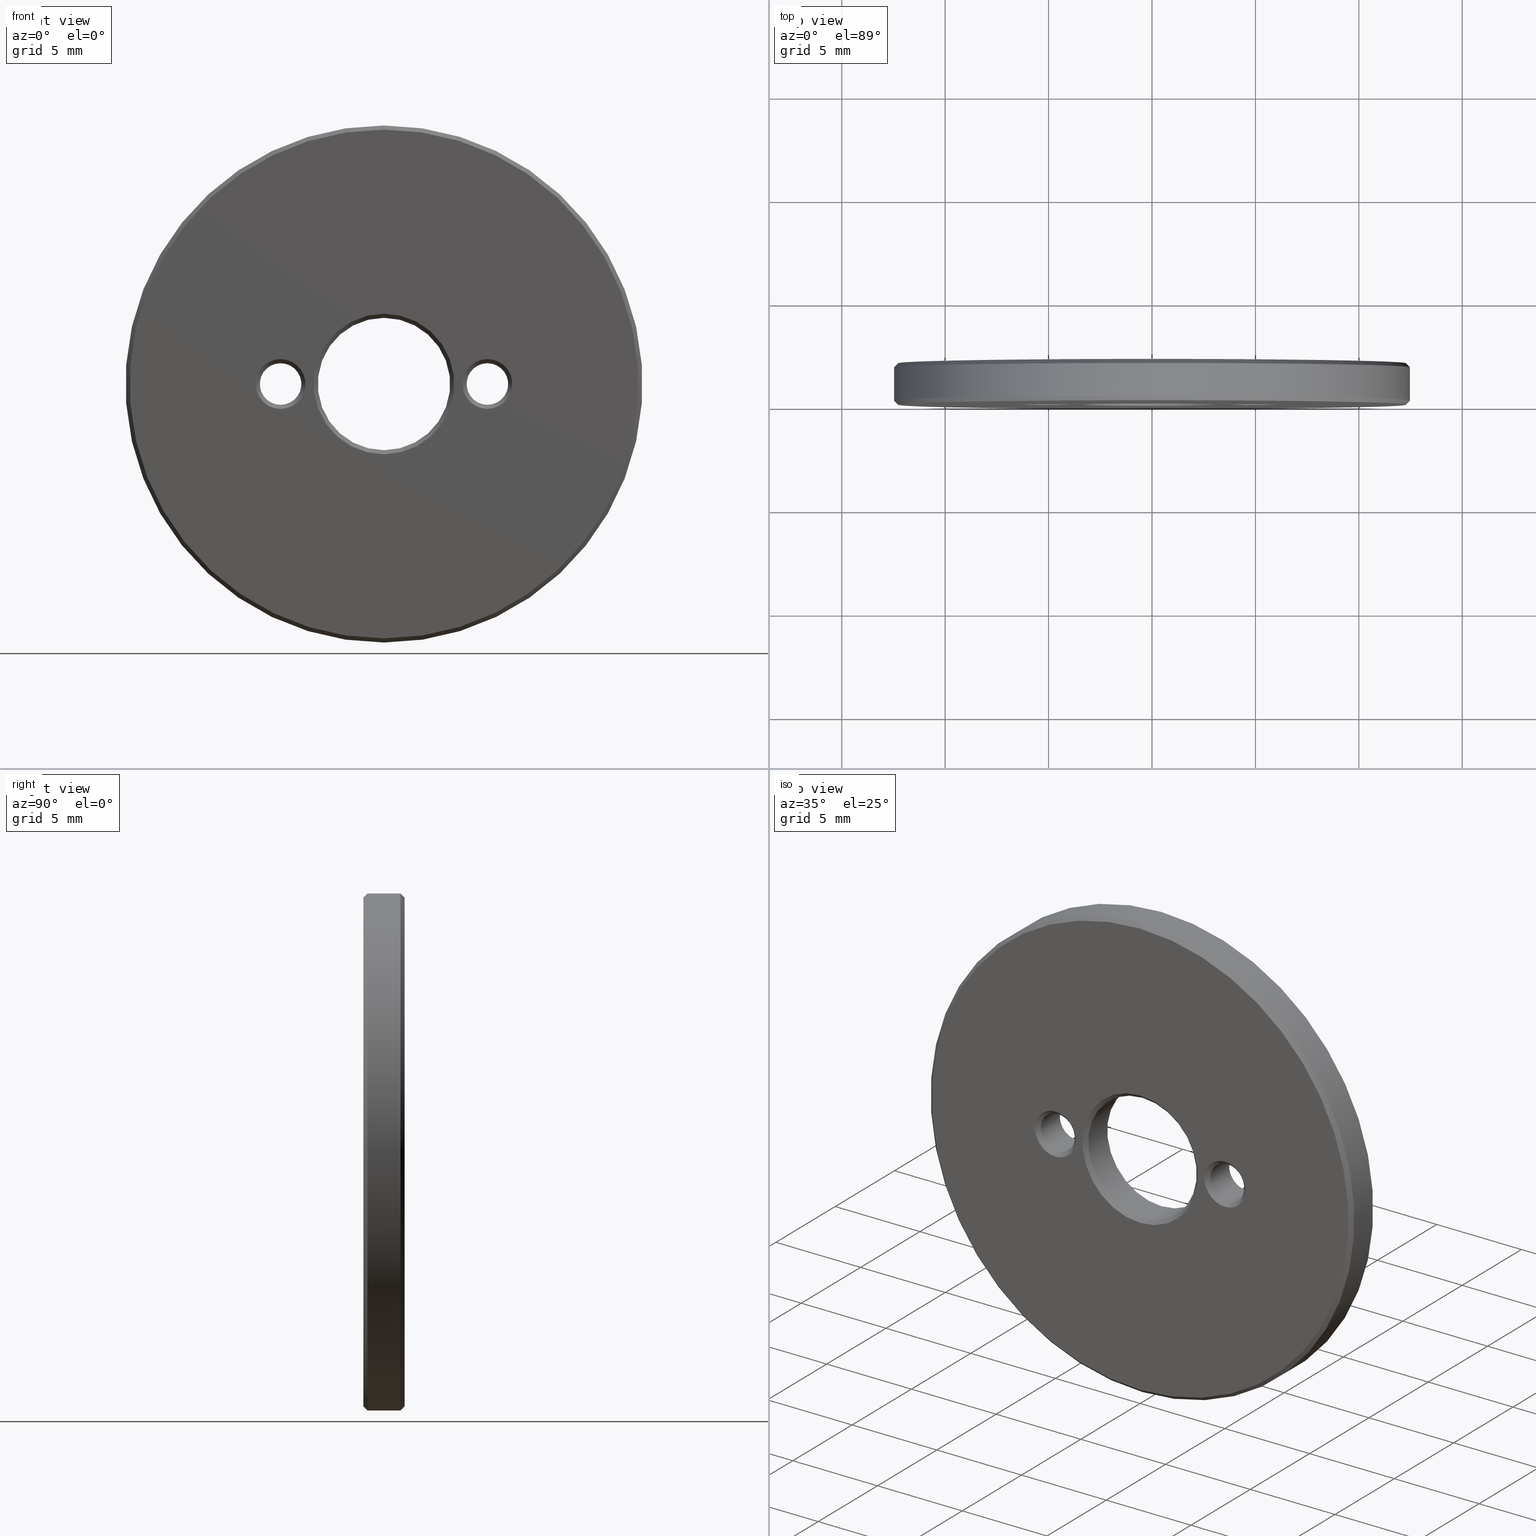
[diagram: canonical four-view strip — front | top / right | iso, engineering-drawing reading convention]
A machine part, canonical four-view strip (front | top / right | iso — engineering-drawing reading convention). The complete STEP part file that produces these views, byte-faithful:
ISO-10303-21;
HEADER;
FILE_DESCRIPTION (( 'STEP AP203' ),
    '1' );
FILE_NAME ('523801.STEP',
    '2022-12-15T01:51:06',
    ( '' ),
    ( '' ),
    'SwSTEP 2.0',
    'SolidWorks 2020',
    '' );
FILE_SCHEMA (( 'CONFIG_CONTROL_DESIGN' ));
ENDSEC;

DATA;
#1 = FACE_BOUND ( 'NONE', #266, .T. ) ;
#2 = VERTEX_POINT ( 'NONE', #27 ) ;
#3 = CLOSED_SHELL ( 'NONE', ( #261, #139, #124, #363, #100, #336, #265, #396, #347, #65, #189, #120, #330, #90 ) ) ;
#4 = DIRECTION ( 'NONE',  ( 0.000000000000000000, 1.000000000000000000, 0.000000000000000000 ) ) ;
#5 = DIRECTION ( 'NONE',  ( 0.000000000000000000, 1.000000000000000000, 0.000000000000000000 ) ) ;
#6 = EDGE_LOOP ( 'NONE', ( #276 ) ) ;
#7 = CARTESIAN_POINT ( 'NONE',  ( 5.000000000000000000, 1.800000000000000266, -1.836970198721029194E-15 ) ) ;
#8 = DATE_AND_TIME ( #155, #73 ) ;
#9 = EDGE_LOOP ( 'NONE', ( #87 ) ) ;
#10 = PERSON_AND_ORGANIZATION_ROLE ( 'design_owner' ) ;
#11 = COORDINATED_UNIVERSAL_TIME_OFFSET ( 8, 0, .AHEAD. ) ;
#12 = AXIS2_PLACEMENT_3D ( 'NONE', #305, #5, #277 ) ;
#13 = CYLINDRICAL_SURFACE ( 'NONE', #397, 3.200000000000000178 ) ;
#14 = CARTESIAN_POINT ( 'NONE',  ( 0.000000000000000000, 0.000000000000000000, 0.000000000000000000 ) ) ;
#15 = EDGE_CURVE ( 'NONE', #232, #232, #119, .T. ) ;
#16 = DIRECTION ( 'NONE',  ( -0.000000000000000000, -1.000000000000000000, -0.000000000000000000 ) ) ;
#17 = FACE_OUTER_BOUND ( 'NONE', #175, .T. ) ;
#18 = FACE_BOUND ( 'NONE', #337, .T. ) ;
#19 = DIRECTION ( 'NONE',  ( 0.000000000000000000, 0.000000000000000000, -1.000000000000000000 ) ) ;
#20 = FACE_OUTER_BOUND ( 'NONE', #176, .T. ) ;
#21 = ORIENTED_EDGE ( 'NONE', *, *, #59, .F. ) ;
#22 = CARTESIAN_POINT ( 'NONE',  ( 0.000000000000000000, 1.799999999999996936, 3.200000000000000178 ) ) ;
#23 = COORDINATED_UNIVERSAL_TIME_OFFSET ( 8, 0, .AHEAD. ) ;
#24 = EDGE_CURVE ( 'NONE', #2, #2, #38, .T. ) ;
#25 = ORIENTED_EDGE ( 'NONE', *, *, #191, .T. ) ;
#26 = EDGE_LOOP ( 'NONE', ( #390 ) ) ;
#27 = CARTESIAN_POINT ( 'NONE',  ( 0.000000000000000000, 0.000000000000000000, 12.29999999999999893 ) ) ;
#28 = DIRECTION ( 'NONE',  ( 0.000000000000000000, 0.000000000000000000, 1.000000000000000000 ) ) ;
#29 = DIRECTION ( 'NONE',  ( 0.000000000000000000, 0.000000000000000000, -1.000000000000000000 ) ) ;
#30 = CC_DESIGN_PERSON_AND_ORGANIZATION_ASSIGNMENT ( #375, #251, ( #237 ) ) ;
#31 = CARTESIAN_POINT ( 'NONE',  ( 0.000000000000000000, 2.000000000000000000, 0.000000000000000000 ) ) ;
#32 = AXIS2_PLACEMENT_3D ( 'NONE', #345, #255, #41 ) ;
#33 = AXIS2_PLACEMENT_3D ( 'NONE', #50, #263, #293 ) ;
#34 = EDGE_LOOP ( 'NONE', ( #25 ) ) ;
#35 = COORDINATED_UNIVERSAL_TIME_OFFSET ( 8, 0, .AHEAD. ) ;
#36 = CONICAL_SURFACE ( 'NONE', #257, 3.400000000000003908, 0.7853981633974396193 ) ;
#37 = ORIENTED_EDGE ( 'NONE', *, *, #24, .T. ) ;
#38 = CIRCLE ( 'NONE', #382, 12.29999999999999893 ) ;
#39 = EDGE_CURVE ( 'NONE', #297, #297, #166, .T. ) ;
#40 = SECURITY_CLASSIFICATION_LEVEL ( 'unclassified' ) ;
#41 = DIRECTION ( 'NONE',  ( 1.000000000000000000, 0.000000000000000000, 0.000000000000000000 ) ) ;
#42 = DIRECTION ( 'NONE',  ( 0.000000000000000000, 0.000000000000000000, -1.000000000000000000 ) ) ;
#43 = CC_DESIGN_APPROVAL ( #182, ( #320 ) ) ;
#44 = CARTESIAN_POINT ( 'NONE',  ( 5.000000000000000000, 1.800000000000000266, -1.836970198721029194E-15 ) ) ;
#45 = AXIS2_PLACEMENT_3D ( 'NONE', #301, #331, #29 ) ;
#46 = CYLINDRICAL_SURFACE ( 'NONE', #185, 1.004999999999999893 ) ;
#47 = EDGE_LOOP ( 'NONE', ( #225 ) ) ;
#48 = AXIS2_PLACEMENT_3D ( 'NONE', #169, #206, #145 ) ;
#49 = DIRECTION ( 'NONE',  ( 0.000000000000000000, 1.000000000000000000, 0.000000000000000000 ) ) ;
#50 = CARTESIAN_POINT ( 'NONE',  ( 0.000000000000000000, 1.799999999999996936, 0.000000000000000000 ) ) ;
#51 = DIRECTION ( 'NONE',  ( 0.000000000000000000, 0.000000000000000000, 1.000000000000000000 ) ) ;
#52 = EDGE_LOOP ( 'NONE', ( #352 ) ) ;
#53 = CARTESIAN_POINT ( 'NONE',  ( -5.000000000000000000, 0.1999999999999981515, 1.004999999999999893 ) ) ;
#54 = CC_DESIGN_PERSON_AND_ORGANIZATION_ASSIGNMENT ( #250, #10, ( #376 ) ) ;
#55 = ADVANCED_BREP_SHAPE_REPRESENTATION ( '523801', ( #135, #32 ), #200 ) ;
#56 = ORIENTED_EDGE ( 'NONE', *, *, #312, .F. ) ;
#57 = CIRCLE ( 'NONE', #364, 1.204999999999997851 ) ;
#58 = PERSON_AND_ORGANIZATION_ROLE ( 'creator' ) ;
#59 = EDGE_CURVE ( 'NONE', #211, #211, #259, .T. ) ;
#60 = CARTESIAN_POINT ( 'NONE',  ( -5.000000000000000000, 0.000000000000000000, 1.204999999999997851 ) ) ;
#61 = FACE_BOUND ( 'NONE', #207, .T. ) ;
#62 = EDGE_LOOP ( 'NONE', ( #37 ) ) ;
#63 = CARTESIAN_POINT ( 'NONE',  ( 5.000000000000000000, 2.000000000000000000, -1.836970198721029194E-15 ) ) ;
#64 = ORIENTED_EDGE ( 'NONE', *, *, #39, .T. ) ;
#65 = ADVANCED_FACE ( 'NONE', ( #350, #20 ), #280, .T. ) ;
#66 = CIRCLE ( 'NONE', #205, 1.004999999999999893 ) ;
#67 = DATE_TIME_ROLE ( 'creation_date' ) ;
#68 = EDGE_CURVE ( 'NONE', #148, #148, #57, .T. ) ;
#69 = FACE_OUTER_BOUND ( 'NONE', #162, .T. ) ;
#70 = CARTESIAN_POINT ( 'NONE',  ( 0.000000000000000000, 2.000000000000000000, 0.000000000000000000 ) ) ;
#71 = EDGE_LOOP ( 'NONE', ( #122 ) ) ;
#72 = CARTESIAN_POINT ( 'NONE',  ( -5.000000000000000000, 0.1999999999999981515, 0.000000000000000000 ) ) ;
#73 = LOCAL_TIME ( 9, 51, 6.000000000000000000, #23 ) ;
#74 = FACE_OUTER_BOUND ( 'NONE', #34, .T. ) ;
#75 = AXIS2_PLACEMENT_3D ( 'NONE', #7, #150, #28 ) ;
#76 = VERTEX_POINT ( 'NONE', #366 ) ;
#77 = COORDINATED_UNIVERSAL_TIME_OFFSET ( 8, 0, .AHEAD. ) ;
#78 = DIRECTION ( 'NONE',  ( 0.000000000000000000, 0.000000000000000000, 1.000000000000000000 ) ) ;
#79 = EDGE_LOOP ( 'NONE', ( #146 ) ) ;
#80 = CIRCLE ( 'NONE', #239, 3.400000000000003908 ) ;
#81 = FACE_BOUND ( 'NONE', #9, .T. ) ;
#82 = AXIS2_PLACEMENT_3D ( 'NONE', #324, #172, #394 ) ;
#83 = CC_DESIGN_PERSON_AND_ORGANIZATION_ASSIGNMENT ( #340, #58, ( #110 ) ) ;
#84 = DIRECTION ( 'NONE',  ( 0.000000000000000000, 1.000000000000000000, 0.000000000000000000 ) ) ;
#85 = CARTESIAN_POINT ( 'NONE',  ( 5.000000000000000000, 0.000000000000000000, 1.204999999999996074 ) ) ;
#86 = APPLICATION_CONTEXT ( 'configuration controlled 3d designs of mechanical parts and assemblies' ) ;
#87 = ORIENTED_EDGE ( 'NONE', *, *, #244, .T. ) ;
#88 = PLANE ( 'NONE',  #193 ) ;
#89 = ORIENTED_EDGE ( 'NONE', *, *, #342, .F. ) ;
#90 = ADVANCED_FACE ( 'NONE', ( #355, #194 ), #372, .F. ) ;
#91 = CIRCLE ( 'NONE', #393, 1.204999999999997851 ) ;
#92 = APPROVAL_DATE_TIME ( #329, #195 ) ;
#93 = CIRCLE ( 'NONE', #219, 12.50000000000000000 ) ;
#94 = APPROVAL_STATUS ( 'not_yet_approved' ) ;
#95 = EDGE_CURVE ( 'NONE', #107, #107, #91, .T. ) ;
#96 = LOCAL_TIME ( 9, 51, 6.000000000000000000, #11 ) ;
#97 = DATE_AND_TIME ( #343, #128 ) ;
#98 = APPROVAL_DATE_TIME ( #159, #282 ) ;
#99 = CONICAL_SURFACE ( 'NONE', #45, 1.204999999999997851, 0.7853981633974477239 ) ;
#100 = ADVANCED_FACE ( 'NONE', ( #231, #74 ), #46, .F. ) ;
#101 = DIRECTION ( 'NONE',  ( 0.000000000000000000, 0.000000000000000000, 1.000000000000000000 ) ) ;
#102 = CARTESIAN_POINT ( 'NONE',  ( -5.000000000000000000, 2.000000000000000000, 0.000000000000000000 ) ) ;
#103 = FACE_OUTER_BOUND ( 'NONE', #47, .T. ) ;
#104 = DIRECTION ( 'NONE',  ( -0.000000000000000000, -1.000000000000000000, -0.000000000000000000 ) ) ;
#105 = FACE_OUTER_BOUND ( 'NONE', #360, .T. ) ;
#106 = CARTESIAN_POINT ( 'NONE',  ( 5.000000000000000000, 0.1999999999999981515, -1.836970198721029194E-15 ) ) ;
#107 = VERTEX_POINT ( 'NONE', #85 ) ;
#108 = CC_DESIGN_APPROVAL ( #195, ( #110 ) ) ;
#109 = PERSON_AND_ORGANIZATION ( #253, #252 ) ;
#110 = PRODUCT_DEFINITION_FORMATION_WITH_SPECIFIED_SOURCE ( '�κ�', '', #376, .NOT_KNOWN. ) ;
#111 = ORIENTED_EDGE ( 'NONE', *, *, #377, .T. ) ;
#112 = EDGE_LOOP ( 'NONE', ( #111 ) ) ;
#113 = AXIS2_PLACEMENT_3D ( 'NONE', #262, #385, #215 ) ;
#114 = CALENDAR_DATE ( 2022, 15, 12 ) ;
#115 = CARTESIAN_POINT ( 'NONE',  ( 0.000000000000000000, 0.2000000000000022593, 0.000000000000000000 ) ) ;
#116 = AXIS2_PLACEMENT_3D ( 'NONE', #313, #230, #346 ) ;
#117 = DIRECTION ( 'NONE',  ( 0.000000000000000000, -1.000000000000000000, 0.000000000000000000 ) ) ;
#118 = VERTEX_POINT ( 'NONE', #213 ) ;
#119 = CIRCLE ( 'NONE', #48, 1.004999999999999893 ) ;
#120 = ADVANCED_FACE ( 'NONE', ( #227, #18 ), #218, .F. ) ;
#121 = DIRECTION ( 'NONE',  ( 0.000000000000000000, -0.000000000000000000, 1.000000000000000000 ) ) ;
#122 = ORIENTED_EDGE ( 'NONE', *, *, #132, .F. ) ;
#123 = EDGE_LOOP ( 'NONE', ( #296 ) ) ;
#124 = ADVANCED_FACE ( 'NONE', ( #103, #196 ), #387, .T. ) ;
#125 = EDGE_LOOP ( 'NONE', ( #216 ) ) ;
#126 = CC_DESIGN_PERSON_AND_ORGANIZATION_ASSIGNMENT ( #306, #358, ( #320 ) ) ;
#127 = MECHANICAL_CONTEXT ( 'NONE', #267, 'mechanical' ) ;
#128 = LOCAL_TIME ( 9, 51, 6.000000000000000000, #221 ) ;
#129 = CALENDAR_DATE ( 2022, 15, 12 ) ;
#130 = CONICAL_SURFACE ( 'NONE', #12, 1.004999999999999893, 0.7853981633974433940 ) ;
#131 = CIRCLE ( 'NONE', #116, 3.200000000000000178 ) ;
#132 = EDGE_CURVE ( 'NONE', #118, #118, #147, .T. ) ;
#133 = DIRECTION ( 'NONE',  ( -0.000000000000000000, -1.000000000000000000, -0.000000000000000000 ) ) ;
#134 = ORIENTED_EDGE ( 'NONE', *, *, #15, .T. ) ;
#135 = MANIFOLD_SOLID_BREP ( '����1', #3 ) ;
#136 = DIRECTION ( 'NONE',  ( 0.000000000000000000, -1.000000000000000000, 0.000000000000000000 ) ) ;
#137 = DIRECTION ( 'NONE',  ( 0.000000000000000000, 0.000000000000000000, -1.000000000000000000 ) ) ;
#138 = DIRECTION ( 'NONE',  ( 0.000000000000000000, 0.000000000000000000, -1.000000000000000000 ) ) ;
#139 = ADVANCED_FACE ( 'NONE', ( #81, #154, #300, #369 ), #88, .F. ) ;
#140 = DIRECTION ( 'NONE',  ( 0.000000000000000000, 0.000000000000000000, 1.000000000000000000 ) ) ;
#141 = DIRECTION ( 'NONE',  ( -0.000000000000000000, -1.000000000000000000, -0.000000000000000000 ) ) ;
#142 = DIRECTION ( 'NONE',  ( 0.000000000000000000, 1.000000000000000000, 0.000000000000000000 ) ) ;
#143 = ORIENTED_EDGE ( 'NONE', *, *, #209, .F. ) ;
#144 = CARTESIAN_POINT ( 'NONE',  ( 0.000000000000000000, 0.2000000000000022593, 12.50000000000000000 ) ) ;
#145 = DIRECTION ( 'NONE',  ( 0.000000000000000000, 0.000000000000000000, 1.000000000000000000 ) ) ;
#146 = ORIENTED_EDGE ( 'NONE', *, *, #279, .F. ) ;
#147 = CIRCLE ( 'NONE', #113, 3.400000000000003908 ) ;
#148 = VERTEX_POINT ( 'NONE', #203 ) ;
#149 = CARTESIAN_POINT ( 'NONE',  ( -5.000000000000000000, 0.000000000000000000, 0.000000000000000000 ) ) ;
#150 = DIRECTION ( 'NONE',  ( 0.000000000000000000, 1.000000000000000000, 0.000000000000000000 ) ) ;
#151 = CC_DESIGN_SECURITY_CLASSIFICATION ( #320, ( #110 ) ) ;
#152 = DIRECTION ( 'NONE',  ( 0.000000000000000000, 0.000000000000000000, 1.000000000000000000 ) ) ;
#153 = EDGE_LOOP ( 'NONE', ( #395 ) ) ;
#154 = FACE_BOUND ( 'NONE', #247, .T. ) ;
#155 = CALENDAR_DATE ( 2022, 15, 12 ) ;
#156 = EDGE_LOOP ( 'NONE', ( #214 ) ) ;
#157 = PERSON_AND_ORGANIZATION_ROLE ( 'design_supplier' ) ;
#158 = DATE_AND_TIME ( #238, #285 ) ;
#159 = DATE_AND_TIME ( #129, #96 ) ;
#160 = FACE_OUTER_BOUND ( 'NONE', #112, .T. ) ;
#161 = AXIS2_PLACEMENT_3D ( 'NONE', #63, #184, #275 ) ;
#162 = EDGE_LOOP ( 'NONE', ( #143 ) ) ;
#163 = FACE_BOUND ( 'NONE', #307, .T. ) ;
#164 = DIRECTION ( 'NONE',  ( 0.000000000000000000, 0.000000000000000000, 1.000000000000000000 ) ) ;
#165 = DIRECTION ( 'NONE',  ( -0.000000000000000000, -1.000000000000000000, -0.000000000000000000 ) ) ;
#166 = CIRCLE ( 'NONE', #224, 1.004999999999999893 ) ;
#167 = DESIGN_CONTEXT ( 'detailed design', #86, 'design' ) ;
#168 = EDGE_CURVE ( 'NONE', #76, #76, #339, .T. ) ;
#169 = CARTESIAN_POINT ( 'NONE',  ( -5.000000000000000000, 1.800000000000000266, 0.000000000000000000 ) ) ;
#170 = FACE_BOUND ( 'NONE', #269, .T. ) ;
#171 = FACE_OUTER_BOUND ( 'NONE', #123, .T. ) ;
#172 = DIRECTION ( 'NONE',  ( 0.000000000000000000, 1.000000000000000000, 0.000000000000000000 ) ) ;
#173 = EDGE_LOOP ( 'NONE', ( #381 ) ) ;
#174 = VERTEX_POINT ( 'NONE', #22 ) ;
#175 = EDGE_LOOP ( 'NONE', ( #134 ) ) ;
#176 = EDGE_LOOP ( 'NONE', ( #56 ) ) ;
#177 = VERTEX_POINT ( 'NONE', #144 ) ;
#178 = CC_DESIGN_DATE_AND_TIME_ASSIGNMENT ( #158, #210, ( #320 ) ) ;
#179 = FACE_OUTER_BOUND ( 'NONE', #26, .T. ) ;
#180 = CARTESIAN_POINT ( 'NONE',  ( 0.000000000000000000, 2.000000000000000000, 3.400000000000003908 ) ) ;
#181 = PLANE ( 'NONE',  #188 ) ;
#182 = APPROVAL ( #204, 'δָ��' ) ;
#183 = EDGE_LOOP ( 'NONE', ( #270 ) ) ;
#184 = DIRECTION ( 'NONE',  ( -0.000000000000000000, -1.000000000000000000, -0.000000000000000000 ) ) ;
#185 = AXIS2_PLACEMENT_3D ( 'NONE', #289, #234, #383 ) ;
#186 = ORIENTED_EDGE ( 'NONE', *, *, #377, .F. ) ;
#187 = AXIS2_PLACEMENT_3D ( 'NONE', #226, #49, #349 ) ;
#188 = AXIS2_PLACEMENT_3D ( 'NONE', #31, #4, #121 ) ;
#189 = ADVANCED_FACE ( 'NONE', ( #333, #61 ), #130, .F. ) ;
#190 = PERSON_AND_ORGANIZATION ( #253, #252 ) ;
#191 = EDGE_CURVE ( 'NONE', #264, #264, #254, .T. ) ;
#192 = CARTESIAN_POINT ( 'NONE',  ( 0.000000000000000000, 0.000000000000000000, 0.000000000000000000 ) ) ;
#193 = AXIS2_PLACEMENT_3D ( 'NONE', #335, #274, #245 ) ;
#194 = FACE_BOUND ( 'NONE', #370, .T. ) ;
#195 = APPROVAL ( #309, 'δָ��' ) ;
#196 = FACE_OUTER_BOUND ( 'NONE', #246, .T. ) ;
#197 = CARTESIAN_POINT ( 'NONE',  ( 0.000000000000000000, 2.000000000000000000, 0.000000000000000000 ) ) ;
#198 = DIRECTION ( 'NONE',  ( 0.000000000000000000, 0.000000000000000000, 1.000000000000000000 ) ) ;
#199 = CARTESIAN_POINT ( 'NONE',  ( 5.000000000000000000, 0.000000000000000000, -1.836970198721029194E-15 ) ) ;
#200 =( GEOMETRIC_REPRESENTATION_CONTEXT ( 3 ) GLOBAL_UNCERTAINTY_ASSIGNED_CONTEXT ( ( #344 ) ) GLOBAL_UNIT_ASSIGNED_CONTEXT ( ( #361, #326, #241 ) ) REPRESENTATION_CONTEXT ( 'NONE', 'WORKASPACE' ) );
#201 = AXIS2_PLACEMENT_3D ( 'NONE', #327, #117, #152 ) ;
#202 = DIRECTION ( 'NONE',  ( 0.000000000000000000, 0.000000000000000000, 1.000000000000000000 ) ) ;
#203 = CARTESIAN_POINT ( 'NONE',  ( -5.000000000000000000, 2.000000000000000000, 1.204999999999997851 ) ) ;
#204 = APPROVAL_STATUS ( 'not_yet_approved' ) ;
#205 = AXIS2_PLACEMENT_3D ( 'NONE', #72, #228, #290 ) ;
#206 = DIRECTION ( 'NONE',  ( 0.000000000000000000, 1.000000000000000000, 0.000000000000000000 ) ) ;
#207 = EDGE_LOOP ( 'NONE', ( #256 ) ) ;
#208 = CARTESIAN_POINT ( 'NONE',  ( 5.000000000000000000, 0.1999999999999981515, 1.004999999999998117 ) ) ;
#209 = EDGE_CURVE ( 'NONE', #332, #332, #380, .T. ) ;
#210 = DATE_TIME_ROLE ( 'classification_date' ) ;
#211 = VERTEX_POINT ( 'NONE', #243 ) ;
#212 = FACE_BOUND ( 'NONE', #79, .T. ) ;
#213 = CARTESIAN_POINT ( 'NONE',  ( 0.000000000000000000, 0.000000000000000000, 3.400000000000003908 ) ) ;
#214 = ORIENTED_EDGE ( 'NONE', *, *, #39, .F. ) ;
#215 = DIRECTION ( 'NONE',  ( 0.000000000000000000, 0.000000000000000000, 1.000000000000000000 ) ) ;
#216 = ORIENTED_EDGE ( 'NONE', *, *, #168, .F. ) ;
#217 = APPROVAL_PERSON_ORGANIZATION ( #109, #182, #323 ) ;
#218 = CONICAL_SURFACE ( 'NONE', #33, 3.200000000000000178, 0.7853981633974492782 ) ;
#219 = AXIS2_PLACEMENT_3D ( 'NONE', #292, #223, #51 ) ;
#220 = PERSON_AND_ORGANIZATION ( #253, #252 ) ;
#221 = COORDINATED_UNIVERSAL_TIME_OFFSET ( 8, 0, .AHEAD. ) ;
#222 = PERSON_AND_ORGANIZATION ( #253, #252 ) ;
#223 = DIRECTION ( 'NONE',  ( -0.000000000000000000, 1.000000000000000000, -0.000000000000000000 ) ) ;
#224 = AXIS2_PLACEMENT_3D ( 'NONE', #106, #104, #229 ) ;
#225 = ORIENTED_EDGE ( 'NONE', *, *, #312, .T. ) ;
#226 = CARTESIAN_POINT ( 'NONE',  ( 0.000000000000000000, 1.799999999999996936, 0.000000000000000000 ) ) ;
#227 = FACE_OUTER_BOUND ( 'NONE', #153, .T. ) ;
#228 = DIRECTION ( 'NONE',  ( -0.000000000000000000, -1.000000000000000000, -0.000000000000000000 ) ) ;
#229 = DIRECTION ( 'NONE',  ( 0.000000000000000000, 0.000000000000000000, 1.000000000000000000 ) ) ;
#230 = DIRECTION ( 'NONE',  ( -0.000000000000000000, -1.000000000000000000, -0.000000000000000000 ) ) ;
#231 = FACE_OUTER_BOUND ( 'NONE', #348, .T. ) ;
#232 = VERTEX_POINT ( 'NONE', #391 ) ;
#233 = AXIS2_PLACEMENT_3D ( 'NONE', #199, #321, #19 ) ;
#234 = DIRECTION ( 'NONE',  ( -0.000000000000000000, -1.000000000000000000, -0.000000000000000000 ) ) ;
#235 = ORIENTED_EDGE ( 'NONE', *, *, #68, .F. ) ;
#236 = VERTEX_POINT ( 'NONE', #60 ) ;
#237 = PRODUCT_DEFINITION ( 'δ֪', '', #110, #167 ) ;
#238 = CALENDAR_DATE ( 2022, 15, 12 ) ;
#239 = AXIS2_PLACEMENT_3D ( 'NONE', #302, #165, #101 ) ;
#240 = DIRECTION ( 'NONE',  ( -0.000000000000000000, -1.000000000000000000, -0.000000000000000000 ) ) ;
#241 =( NAMED_UNIT ( * ) SI_UNIT ( $, .STERADIAN. ) SOLID_ANGLE_UNIT ( ) );
#242 = FACE_OUTER_BOUND ( 'NONE', #248, .T. ) ;
#243 = CARTESIAN_POINT ( 'NONE',  ( 0.000000000000000000, 2.000000000000000000, 12.29999999999999893 ) ) ;
#244 = EDGE_CURVE ( 'NONE', #236, #236, #304, .T. ) ;
#245 = DIRECTION ( 'NONE',  ( 0.000000000000000000, -0.000000000000000000, 1.000000000000000000 ) ) ;
#246 = EDGE_LOOP ( 'NONE', ( #303 ) ) ;
#247 = EDGE_LOOP ( 'NONE', ( #371 ) ) ;
#248 = EDGE_LOOP ( 'NONE', ( #368 ) ) ;
#249 = CC_DESIGN_PERSON_AND_ORGANIZATION_ASSIGNMENT ( #220, #157, ( #110 ) ) ;
#250 = PERSON_AND_ORGANIZATION ( #253, #252 ) ;
#251 = PERSON_AND_ORGANIZATION_ROLE ( 'creator' ) ;
#252 = ORGANIZATION ( 'δָ��', 'δָ��', '' ) ;
#253 = PERSON ( 'δָ��', 'δָ��', 'δָ��', ('δָ��'), ('δָ��'), ('δָ��') ) ;
#254 = CIRCLE ( 'NONE', #75, 1.004999999999999893 ) ;
#255 = DIRECTION ( 'NONE',  ( 0.000000000000000000, 0.000000000000000000, 1.000000000000000000 ) ) ;
#256 = ORIENTED_EDGE ( 'NONE', *, *, #15, .F. ) ;
#257 = AXIS2_PLACEMENT_3D ( 'NONE', #192, #384, #42 ) ;
#258 = ORIENTED_EDGE ( 'NONE', *, *, #273, .T. ) ;
#259 = CIRCLE ( 'NONE', #82, 12.29999999999999893 ) ;
#260 = FACE_OUTER_BOUND ( 'NONE', #71, .T. ) ;
#261 = ADVANCED_FACE ( 'NONE', ( #272, #1, #242, #365 ), #181, .T. ) ;
#262 = CARTESIAN_POINT ( 'NONE',  ( 0.000000000000000000, 0.000000000000000000, 0.000000000000000000 ) ) ;
#263 = DIRECTION ( 'NONE',  ( 0.000000000000000000, 1.000000000000000000, 0.000000000000000000 ) ) ;
#264 = VERTEX_POINT ( 'NONE', #388 ) ;
#265 = ADVANCED_FACE ( 'NONE', ( #212, #179 ), #99, .F. ) ;
#266 = EDGE_LOOP ( 'NONE', ( #258 ) ) ;
#267 = APPLICATION_CONTEXT ( 'configuration controlled 3d designs of mechanical parts and assemblies' ) ;
#268 = AXIS2_PLACEMENT_3D ( 'NONE', #44, #142, #164 ) ;
#269 = EDGE_LOOP ( 'NONE', ( #21 ) ) ;
#270 = ORIENTED_EDGE ( 'NONE', *, *, #132, .T. ) ;
#271 = VERTEX_POINT ( 'NONE', #299 ) ;
#272 = FACE_BOUND ( 'NONE', #6, .T. ) ;
#273 = EDGE_CURVE ( 'NONE', #356, #356, #80, .T. ) ;
#274 = DIRECTION ( 'NONE',  ( 0.000000000000000000, 1.000000000000000000, 0.000000000000000000 ) ) ;
#275 = DIRECTION ( 'NONE',  ( 0.000000000000000000, 0.000000000000000000, 1.000000000000000000 ) ) ;
#276 = ORIENTED_EDGE ( 'NONE', *, *, #68, .T. ) ;
#277 = DIRECTION ( 'NONE',  ( 0.000000000000000000, 0.000000000000000000, 1.000000000000000000 ) ) ;
#278 = ORIENTED_EDGE ( 'NONE', *, *, #168, .T. ) ;
#279 = EDGE_CURVE ( 'NONE', #322, #322, #66, .T. ) ;
#280 = CONICAL_SURFACE ( 'NONE', #310, 12.50000000000000000, 0.7853981633974482790 ) ;
#281 = APPLICATION_PROTOCOL_DEFINITION ( 'international standard', 'config_control_design', 1994, #267 ) ;
#282 = APPROVAL ( #94, 'δָ��' ) ;
#283 = APPLICATION_PROTOCOL_DEFINITION ( 'international standard', 'config_control_design', 1994, #86 ) ;
#284 = CONICAL_SURFACE ( 'NONE', #233, 1.204999999999997851, 0.7853981633974477239 ) ;
#285 = LOCAL_TIME ( 9, 51, 6.000000000000000000, #35 ) ;
#286 = EDGE_LOOP ( 'NONE', ( #278 ) ) ;
#287 = CONICAL_SURFACE ( 'NONE', #362, 12.29999999999999893, 0.7853981633974612686 ) ;
#288 = PRODUCT_RELATED_PRODUCT_CATEGORY ( 'detail', '', ( #376 ) ) ;
#289 = CARTESIAN_POINT ( 'NONE',  ( 5.000000000000000000, 2.000000000000000000, -1.836970198721029194E-15 ) ) ;
#290 = DIRECTION ( 'NONE',  ( 0.000000000000000000, 0.000000000000000000, 1.000000000000000000 ) ) ;
#291 = CARTESIAN_POINT ( 'NONE',  ( 0.000000000000000000, 2.000000000000000000, 0.000000000000000000 ) ) ;
#292 = CARTESIAN_POINT ( 'NONE',  ( 0.000000000000000000, 0.2000000000000022593, 0.000000000000000000 ) ) ;
#293 = DIRECTION ( 'NONE',  ( 0.000000000000000000, 0.000000000000000000, 1.000000000000000000 ) ) ;
#294 = DIRECTION ( 'NONE',  ( 0.000000000000000000, 0.000000000000000000, -1.000000000000000000 ) ) ;
#295 = DIRECTION ( 'NONE',  ( -0.000000000000000000, 1.000000000000000000, -0.000000000000000000 ) ) ;
#296 = ORIENTED_EDGE ( 'NONE', *, *, #279, .T. ) ;
#297 = VERTEX_POINT ( 'NONE', #208 ) ;
#298 = EDGE_LOOP ( 'NONE', ( #235 ) ) ;
#299 = CARTESIAN_POINT ( 'NONE',  ( 0.000000000000000000, 0.2000000000000070333, 3.200000000000000178 ) ) ;
#300 = FACE_BOUND ( 'NONE', #183, .T. ) ;
#301 = CARTESIAN_POINT ( 'NONE',  ( -5.000000000000000000, 0.000000000000000000, 0.000000000000000000 ) ) ;
#302 = CARTESIAN_POINT ( 'NONE',  ( 0.000000000000000000, 2.000000000000000000, 0.000000000000000000 ) ) ;
#303 = ORIENTED_EDGE ( 'NONE', *, *, #209, .T. ) ;
#304 = CIRCLE ( 'NONE', #357, 1.204999999999997851 ) ;
#305 = CARTESIAN_POINT ( 'NONE',  ( -5.000000000000000000, 1.800000000000000266, 0.000000000000000000 ) ) ;
#306 = PERSON_AND_ORGANIZATION ( #253, #252 ) ;
#307 = EDGE_LOOP ( 'NONE', ( #89 ) ) ;
#308 = CIRCLE ( 'NONE', #187, 3.200000000000000178 ) ;
#309 = APPROVAL_STATUS ( 'not_yet_approved' ) ;
#310 = AXIS2_PLACEMENT_3D ( 'NONE', #115, #295, #140 ) ;
#311 = APPROVAL_DATE_TIME ( #8, #182 ) ;
#312 = EDGE_CURVE ( 'NONE', #177, #177, #93, .T. ) ;
#313 = CARTESIAN_POINT ( 'NONE',  ( 0.000000000000000000, 0.2000000000000070333, 0.000000000000000000 ) ) ;
#314 = DIRECTION ( 'NONE',  ( 0.000000000000000000, 0.000000000000000000, -1.000000000000000000 ) ) ;
#315 = AXIS2_PLACEMENT_3D ( 'NONE', #291, #16, #137 ) ;
#316 = PRODUCT_DEFINITION_SHAPE ( 'NONE', 'NONE',  #237 ) ;
#317 = CC_DESIGN_DATE_AND_TIME_ASSIGNMENT ( #97, #67, ( #237 ) ) ;
#318 = CARTESIAN_POINT ( 'NONE',  ( -5.000000000000000000, 2.000000000000000000, 0.000000000000000000 ) ) ;
#319 = FACE_BOUND ( 'NONE', #156, .T. ) ;
#320 = SECURITY_CLASSIFICATION ( '', '', #40 ) ;
#321 = DIRECTION ( 'NONE',  ( -0.000000000000000000, -1.000000000000000000, -0.000000000000000000 ) ) ;
#322 = VERTEX_POINT ( 'NONE', #53 ) ;
#323 = APPROVAL_ROLE ( '' ) ;
#324 = CARTESIAN_POINT ( 'NONE',  ( 0.000000000000000000, 2.000000000000000000, 0.000000000000000000 ) ) ;
#325 = ORIENTED_EDGE ( 'NONE', *, *, #191, .F. ) ;
#326 =( NAMED_UNIT ( * ) PLANE_ANGLE_UNIT ( ) SI_UNIT ( $, .RADIAN. ) );
#327 = CARTESIAN_POINT ( 'NONE',  ( 0.000000000000000000, 1.800000000000002931, 0.000000000000000000 ) ) ;
#328 = CARTESIAN_POINT ( 'NONE',  ( 0.000000000000000000, 1.800000000000002931, 12.50000000000000000 ) ) ;
#329 = DATE_AND_TIME ( #114, #338 ) ;
#330 = ADVANCED_FACE ( 'NONE', ( #69, #170 ), #287, .T. ) ;
#331 = DIRECTION ( 'NONE',  ( -0.000000000000000000, -1.000000000000000000, -0.000000000000000000 ) ) ;
#332 = VERTEX_POINT ( 'NONE', #328 ) ;
#333 = FACE_OUTER_BOUND ( 'NONE', #298, .T. ) ;
#334 = ORIENTED_EDGE ( 'NONE', *, *, #342, .T. ) ;
#335 = CARTESIAN_POINT ( 'NONE',  ( 0.000000000000000000, 0.000000000000000000, 0.000000000000000000 ) ) ;
#336 = ADVANCED_FACE ( 'NONE', ( #171, #17 ), #386, .F. ) ;
#337 = EDGE_LOOP ( 'NONE', ( #186 ) ) ;
#338 = LOCAL_TIME ( 9, 51, 6.000000000000000000, #77 ) ;
#339 = CIRCLE ( 'NONE', #161, 1.204999999999997851 ) ;
#340 = PERSON_AND_ORGANIZATION ( #253, #252 ) ;
#341 = AXIS2_PLACEMENT_3D ( 'NONE', #102, #141, #314 ) ;
#342 = EDGE_CURVE ( 'NONE', #271, #271, #131, .T. ) ;
#343 = CALENDAR_DATE ( 2022, 15, 12 ) ;
#344 = UNCERTAINTY_MEASURE_WITH_UNIT (LENGTH_MEASURE( 1.000000000000000082E-05 ), #361, 'distance_accuracy_value', 'NONE');
#345 = CARTESIAN_POINT ( 'NONE',  ( 0.000000000000000000, 0.000000000000000000, 0.000000000000000000 ) ) ;
#346 = DIRECTION ( 'NONE',  ( 0.000000000000000000, 0.000000000000000000, 1.000000000000000000 ) ) ;
#347 = ADVANCED_FACE ( 'NONE', ( #163, #260 ), #36, .F. ) ;
#348 = EDGE_LOOP ( 'NONE', ( #64 ) ) ;
#349 = DIRECTION ( 'NONE',  ( 0.000000000000000000, 0.000000000000000000, 1.000000000000000000 ) ) ;
#350 = FACE_BOUND ( 'NONE', #173, .T. ) ;
#351 = DIRECTION ( 'NONE',  ( -0.000000000000000000, -1.000000000000000000, -0.000000000000000000 ) ) ;
#352 = ORIENTED_EDGE ( 'NONE', *, *, #95, .F. ) ;
#353 = FACE_OUTER_BOUND ( 'NONE', #52, .T. ) ;
#354 = CC_DESIGN_APPROVAL ( #282, ( #237 ) ) ;
#355 = FACE_OUTER_BOUND ( 'NONE', #125, .T. ) ;
#356 = VERTEX_POINT ( 'NONE', #180 ) ;
#357 = AXIS2_PLACEMENT_3D ( 'NONE', #149, #84, #367 ) ;
#358 = PERSON_AND_ORGANIZATION_ROLE ( 'classification_officer' ) ;
#359 = CARTESIAN_POINT ( 'NONE',  ( 5.000000000000000000, 0.000000000000000000, -1.836970198721029194E-15 ) ) ;
#360 = EDGE_LOOP ( 'NONE', ( #334 ) ) ;
#361 =( LENGTH_UNIT ( ) NAMED_UNIT ( * ) SI_UNIT ( .MILLI., .METRE. ) );
#362 = AXIS2_PLACEMENT_3D ( 'NONE', #70, #136, #138 ) ;
#363 = ADVANCED_FACE ( 'NONE', ( #105, #160 ), #13, .F. ) ;
#364 = AXIS2_PLACEMENT_3D ( 'NONE', #318, #240, #198 ) ;
#365 = FACE_BOUND ( 'NONE', #286, .T. ) ;
#366 = CARTESIAN_POINT ( 'NONE',  ( 5.000000000000000000, 2.000000000000000000, 1.204999999999996074 ) ) ;
#367 = DIRECTION ( 'NONE',  ( 0.000000000000000000, 0.000000000000000000, 1.000000000000000000 ) ) ;
#368 = ORIENTED_EDGE ( 'NONE', *, *, #59, .T. ) ;
#369 = FACE_OUTER_BOUND ( 'NONE', #62, .T. ) ;
#370 = EDGE_LOOP ( 'NONE', ( #325 ) ) ;
#371 = ORIENTED_EDGE ( 'NONE', *, *, #95, .T. ) ;
#372 = CONICAL_SURFACE ( 'NONE', #268, 1.004999999999999893, 0.7853981633974433940 ) ;
#373 = APPROVAL_ROLE ( '' ) ;
#374 = SHAPE_DEFINITION_REPRESENTATION ( #316, #55 ) ;
#375 = PERSON_AND_ORGANIZATION ( #253, #252 ) ;
#376 = PRODUCT ( '523801', '523801', '', ( #127 ) ) ;
#377 = EDGE_CURVE ( 'NONE', #174, #174, #308, .T. ) ;
#378 = APPROVAL_ROLE ( '' ) ;
#379 = APPROVAL_PERSON_ORGANIZATION ( #190, #195, #373 ) ;
#380 = CIRCLE ( 'NONE', #201, 12.50000000000000000 ) ;
#381 = ORIENTED_EDGE ( 'NONE', *, *, #24, .F. ) ;
#382 = AXIS2_PLACEMENT_3D ( 'NONE', #14, #351, #78 ) ;
#383 = DIRECTION ( 'NONE',  ( 0.000000000000000000, 0.000000000000000000, -1.000000000000000000 ) ) ;
#384 = DIRECTION ( 'NONE',  ( -0.000000000000000000, -1.000000000000000000, -0.000000000000000000 ) ) ;
#385 = DIRECTION ( 'NONE',  ( 0.000000000000000000, 1.000000000000000000, 0.000000000000000000 ) ) ;
#386 = CYLINDRICAL_SURFACE ( 'NONE', #341, 1.004999999999999893 ) ;
#387 = CYLINDRICAL_SURFACE ( 'NONE', #315, 12.50000000000000000 ) ;
#388 = CARTESIAN_POINT ( 'NONE',  ( 5.000000000000000000, 1.800000000000000266, 1.004999999999998117 ) ) ;
#389 = DIRECTION ( 'NONE',  ( 0.000000000000000000, 1.000000000000000000, 0.000000000000000000 ) ) ;
#390 = ORIENTED_EDGE ( 'NONE', *, *, #244, .F. ) ;
#391 = CARTESIAN_POINT ( 'NONE',  ( -5.000000000000000000, 1.800000000000000266, 1.004999999999999893 ) ) ;
#392 = APPROVAL_PERSON_ORGANIZATION ( #222, #282, #378 ) ;
#393 = AXIS2_PLACEMENT_3D ( 'NONE', #359, #389, #202 ) ;
#394 = DIRECTION ( 'NONE',  ( 0.000000000000000000, 0.000000000000000000, 1.000000000000000000 ) ) ;
#395 = ORIENTED_EDGE ( 'NONE', *, *, #273, .F. ) ;
#396 = ADVANCED_FACE ( 'NONE', ( #319, #353 ), #284, .F. ) ;
#397 = AXIS2_PLACEMENT_3D ( 'NONE', #197, #133, #294 ) ;
ENDSEC;
END-ISO-10303-21;
